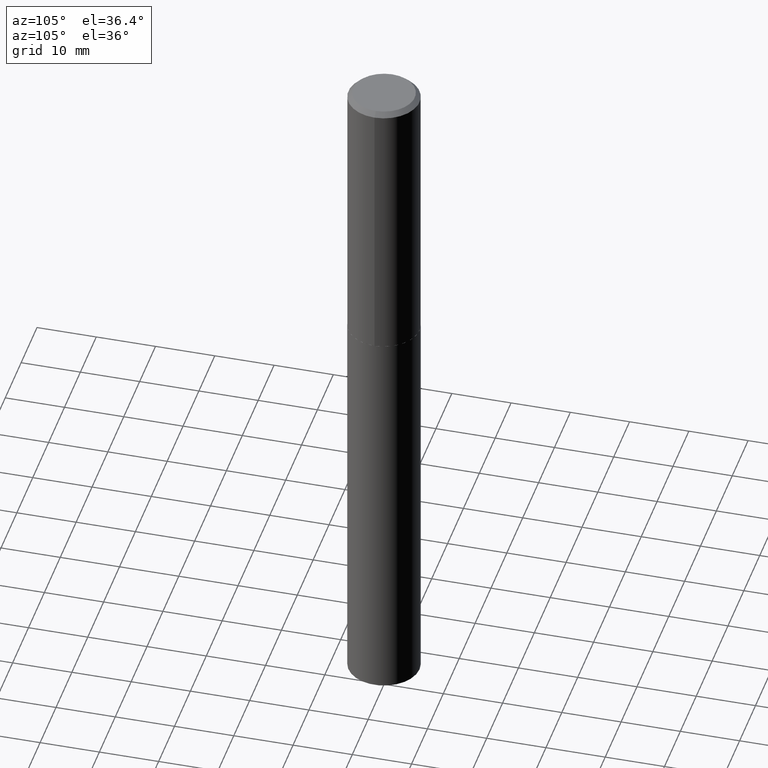
[diagram: clean part render]
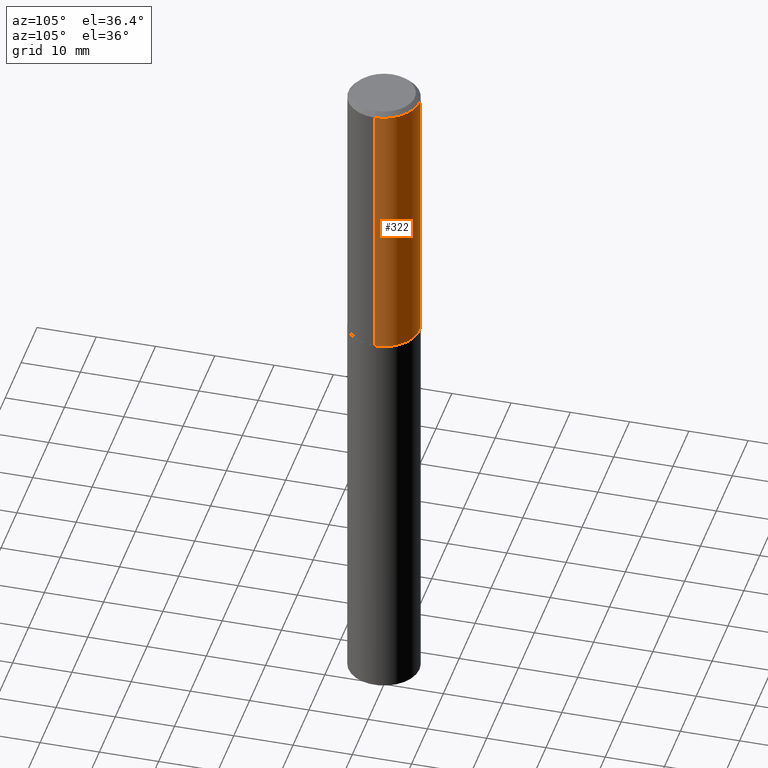
[diagram: same view with one face highlighted and labeled with its STEP entity id]
A machine part, auxiliary view. The second image highlights one B-rep face of the part: STEP entity #322.
In plain terms, the highlighted cylindrical surface (partial cylindrical patch) has radius 5.9995 mm, axis along (-0, 0, 1).
Its self-contained STEP definition (entity closure, byte-faithful):
#9 = ORIENTED_EDGE ( 'NONE', *, *, #97, .F. ) ;
#12 = CIRCLE ( 'NONE', #340, 0.2361999999999999933 ) ;
#20 = DIRECTION ( 'NONE',  ( -2.445468806185136597E-29, 3.491481338843145583E-15, 1.000000000000000000 ) ) ;
#30 = CARTESIAN_POINT ( 'NONE',  ( -0.2362000000000001321, 1.678301941865357577E-15, -1.161852468318209457E-29 ) ) ;
#41 = CIRCLE ( 'NONE', #275, 0.2362000000000002709 ) ;
#47 = LINE ( 'NONE', #178, #390 ) ;
#55 = CARTESIAN_POINT ( 'NONE',  ( 7.642090019328607041E-31, -1.091087918388490883E-16, -0.03125000000000022898 ) ) ;
#63 = CYLINDRICAL_SURFACE ( 'NONE', #92, 0.2362000000000001321 ) ;
#67 = CARTESIAN_POINT ( 'NONE',  ( 0.000000000000000000, 0.000000000000000000, 0.000000000000000000 ) ) ;
#70 = CARTESIAN_POINT ( 'NONE',  ( 0.2362000000000002709, -8.109314557597087077E-15, -1.850200000000000067 ) ) ;
#78 = CARTESIAN_POINT ( 'NONE',  ( -0.2362000000000002709, -4.781636831262230214E-15, -1.850200000000000067 ) ) ;
#88 = DIRECTION ( 'NONE',  ( -2.445468806185136877E-29, 3.491481338843145188E-15, 1.000000000000000000 ) ) ;
#90 = CARTESIAN_POINT ( 'NONE',  ( 4.524606385203739825E-29, -6.459938773127588186E-15, -1.850200000000000067 ) ) ;
#92 = AXIS2_PLACEMENT_3D ( 'NONE', #67, #272, #96 ) ;
#96 = DIRECTION ( 'NONE',  ( 1.000000000000000000, -6.982962677686266711E-15, 4.876176775795936353E-29 ) ) ;
#97 = EDGE_CURVE ( 'NONE', #170, #174, #12, .T. ) ;
#101 = EDGE_CURVE ( 'NONE', #287, #174, #248, .T. ) ;
#119 = DIRECTION ( 'NONE',  ( 1.000000000000000000, -6.982962677686266711E-15, 0.000000000000000000 ) ) ;
#137 = DIRECTION ( 'NONE',  ( 1.000000000000000000, -6.982962677686269077E-15, 0.000000000000000000 ) ) ;
#150 = EDGE_CURVE ( 'NONE', #347, #170, #47, .T. ) ;
#170 = VERTEX_POINT ( 'NONE', #263 ) ;
#174 = VERTEX_POINT ( 'NONE', #197 ) ;
#178 = CARTESIAN_POINT ( 'NONE',  ( 0.2362000000000001321, -1.649375784469497117E-15, 1.151752954443000789E-29 ) ) ;
#197 = CARTESIAN_POINT ( 'NONE',  ( -0.2361999999999999933, -1.606221840617860474E-15, -0.03125000000000022898 ) ) ;
#209 = ORIENTED_EDGE ( 'NONE', *, *, #268, .T. ) ;
#248 = LINE ( 'NONE', #30, #327 ) ;
#263 = CARTESIAN_POINT ( 'NONE',  ( 0.2361999999999999933, -1.758484576308345231E-15, -0.03125000000000022898 ) ) ;
#268 = EDGE_CURVE ( 'NONE', #347, #287, #41, .T. ) ;
#272 = DIRECTION ( 'NONE',  ( -2.445468806185136597E-29, 3.491481338843145583E-15, 1.000000000000000000 ) ) ;
#275 = AXIS2_PLACEMENT_3D ( 'NONE', #90, #20, #137 ) ;
#279 = ORIENTED_EDGE ( 'NONE', *, *, #150, .F. ) ;
#287 = VERTEX_POINT ( 'NONE', #78 ) ;
#322 = ADVANCED_FACE ( 'NONE', ( #365 ), #63, .T. ) ;
#325 = DIRECTION ( 'NONE',  ( -2.445468806185136597E-29, 3.491481338843145583E-15, 1.000000000000000000 ) ) ;
#327 = VECTOR ( 'NONE', #88, 39.37007874015748143 ) ;
#340 = AXIS2_PLACEMENT_3D ( 'NONE', #55, #325, #119 ) ;
#343 = EDGE_LOOP ( 'NONE', ( #209, #384, #9, #279 ) ) ;
#347 = VERTEX_POINT ( 'NONE', #70 ) ;
#355 = DIRECTION ( 'NONE',  ( -2.445468806185136877E-29, 3.491481338843145188E-15, 1.000000000000000000 ) ) ;
#365 = FACE_OUTER_BOUND ( 'NONE', #343, .T. ) ;
#384 = ORIENTED_EDGE ( 'NONE', *, *, #101, .T. ) ;
#390 = VECTOR ( 'NONE', #355, 39.37007874015748143 ) ;